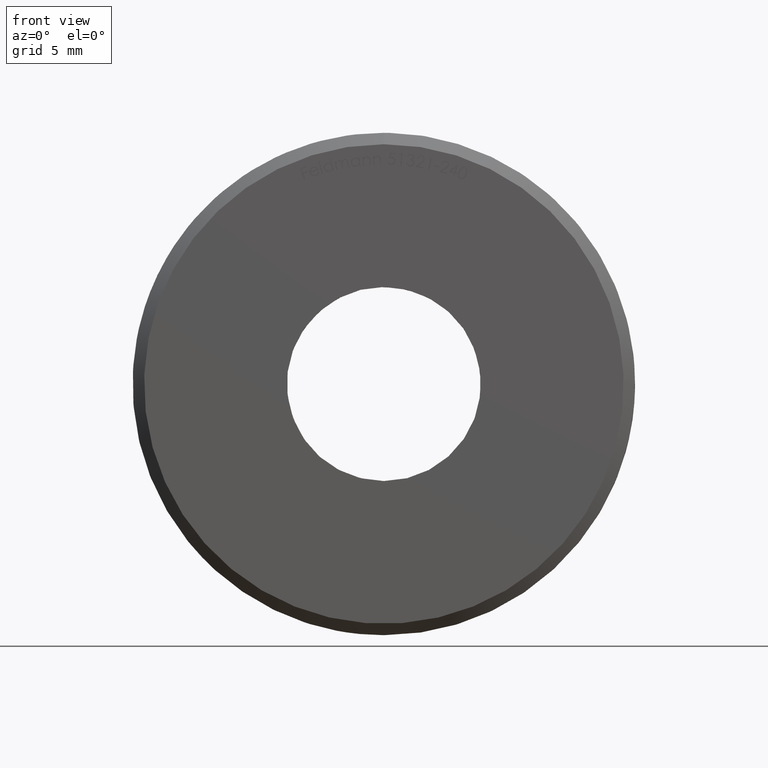
[diagram: clean part render]
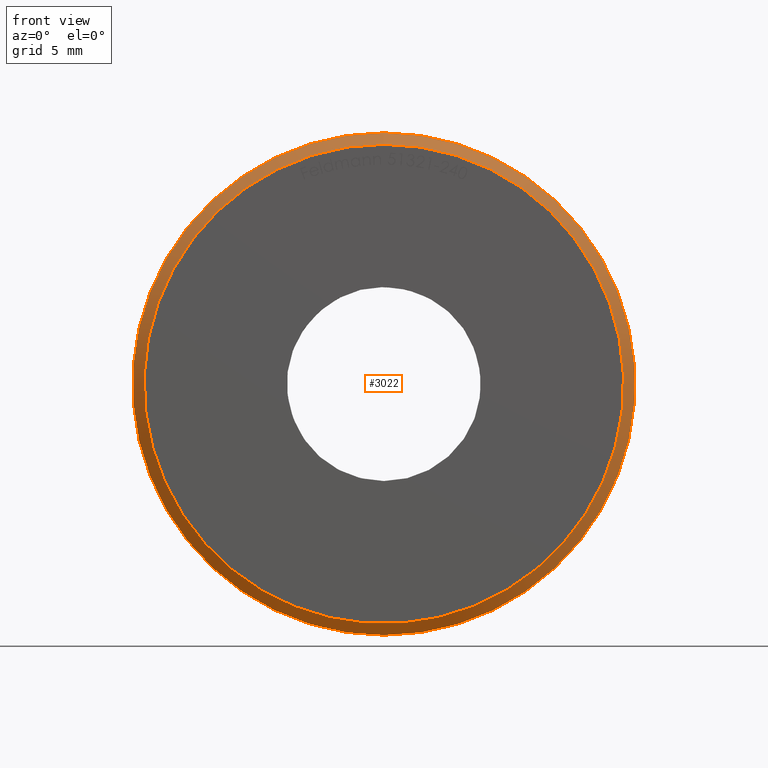
[diagram: same view with one face highlighted and labeled with its STEP entity id]
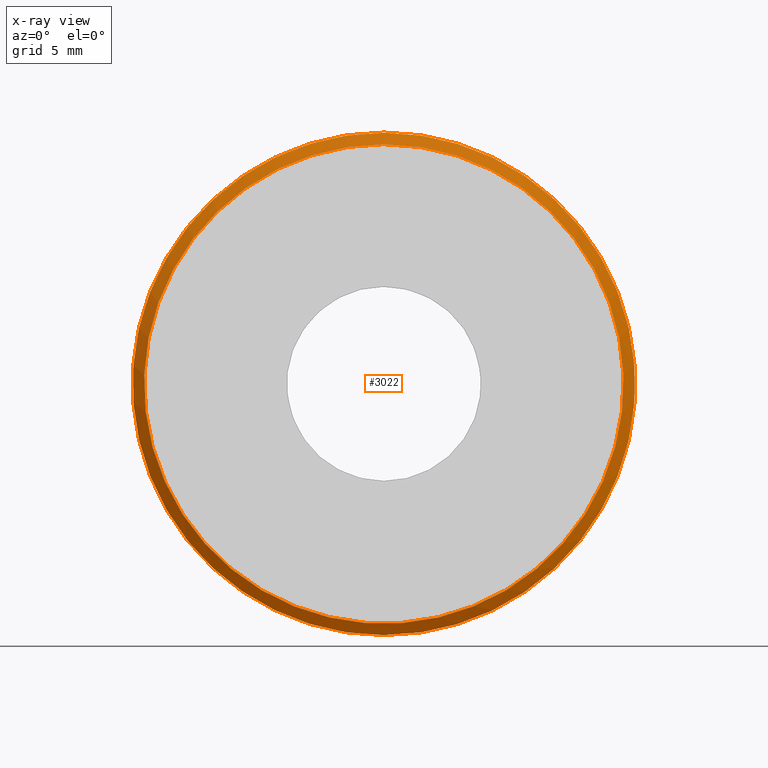
[diagram: x-ray of the same camera — body ghosted, the highlighted face saturated]
A machine part, front view. The second image highlights one B-rep face of the part: STEP entity #3022.
The next image is the same camera in x-ray: the body ghosted, the highlighted face saturated — about 0% of this face is hidden behind the body in this view.
In plain terms, the highlighted conical surface has half-angle 45 deg.
Its self-contained STEP definition (entity closure, byte-faithful):
#394 = AXIS2_PLACEMENT_3D ( 'NONE', #8190, #10981, #11918 ) ;
#634 = VERTEX_POINT ( 'NONE', #6283 ) ;
#651 = ORIENTED_EDGE ( 'NONE', *, *, #9099, .F. ) ;
#871 = CONICAL_SURFACE ( 'NONE', #394, 11.00000000000000000, 0.7853981633974517207 ) ;
#995 = CARTESIAN_POINT ( 'NONE',  ( 0.000000000000000000, 0.000000000000000000, 0.000000000000000000 ) ) ;
#1718 = ORIENTED_EDGE ( 'NONE', *, *, #6084, .F. ) ;
#2846 = DIRECTION ( 'NONE',  ( 0.000000000000000000, 0.000000000000000000, 1.000000000000000000 ) ) ;
#3022 = ADVANCED_FACE ( 'NONE', ( #11084, #11529 ), #871, .T. ) ;
#4378 = DIRECTION ( 'NONE',  ( 0.000000000000000000, 0.000000000000000000, 1.000000000000000000 ) ) ;
#5424 = CARTESIAN_POINT ( 'NONE',  ( 0.000000000000000000, 0.5000000000000004441, 0.000000000000000000 ) ) ;
#5551 = EDGE_LOOP ( 'NONE', ( #651 ) ) ;
#6084 = EDGE_CURVE ( 'NONE', #634, #634, #7204, .T. ) ;
#6283 = CARTESIAN_POINT ( 'NONE',  ( 0.000000000000000000, 0.5000000000000004441, 11.00000000000000000 ) ) ;
#6608 = CIRCLE ( 'NONE', #9003, 10.49999999999999467 ) ;
#6894 = EDGE_LOOP ( 'NONE', ( #1718 ) ) ;
#7204 = CIRCLE ( 'NONE', #11762, 11.00000000000000000 ) ;
#7460 = DIRECTION ( 'NONE',  ( -0.000000000000000000, -1.000000000000000000, -0.000000000000000000 ) ) ;
#7994 = VERTEX_POINT ( 'NONE', #9172 ) ;
#8161 = DIRECTION ( 'NONE',  ( -0.000000000000000000, 1.000000000000000000, -0.000000000000000000 ) ) ;
#8190 = CARTESIAN_POINT ( 'NONE',  ( 0.000000000000000000, 0.5000000000000004441, 0.000000000000000000 ) ) ;
#9003 = AXIS2_PLACEMENT_3D ( 'NONE', #995, #7460, #2846 ) ;
#9099 = EDGE_CURVE ( 'NONE', #7994, #7994, #6608, .T. ) ;
#9172 = CARTESIAN_POINT ( 'NONE',  ( 0.000000000000000000, 0.000000000000000000, 10.49999999999999467 ) ) ;
#10981 = DIRECTION ( 'NONE',  ( -0.000000000000000000, 1.000000000000000000, -0.000000000000000000 ) ) ;
#11084 = FACE_BOUND ( 'NONE', #5551, .T. ) ;
#11529 = FACE_OUTER_BOUND ( 'NONE', #6894, .T. ) ;
#11762 = AXIS2_PLACEMENT_3D ( 'NONE', #5424, #8161, #4378 ) ;
#11918 = DIRECTION ( 'NONE',  ( 0.000000000000000000, 0.000000000000000000, 1.000000000000000000 ) ) ;